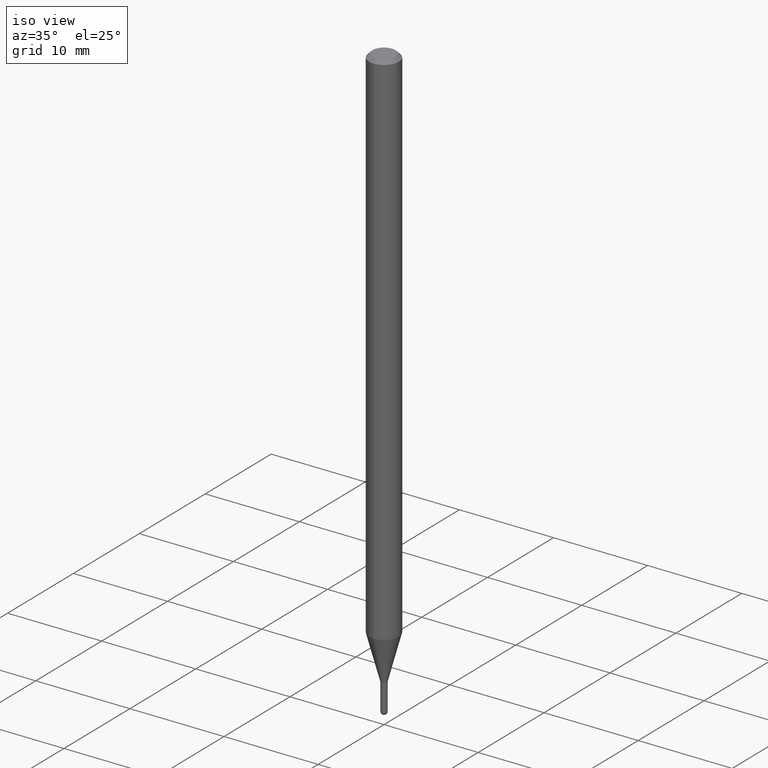
[diagram: clean part render]
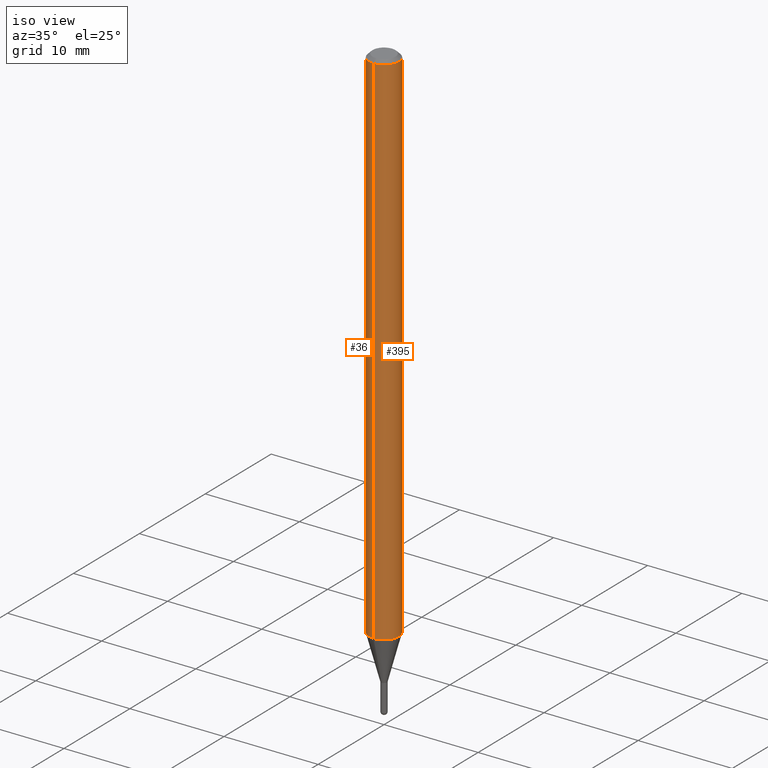
[diagram: same view with one multi-face feature highlighted, each face labeled with its STEP entity id]
A machine part, iso view. The highlighted faces form ONE feature: a constant-radius fillet chain: 2 tangent blend faces with common blend radius 1.5875 mm. The faces share edges in the B-rep.
Their STEP definitions:
[1] entity #36 (Cylinder):
#31 = CARTESIAN_POINT ( 'NONE',  ( 3.668088446611208352E-31, -5.237386354935034008E-17, -0.01500000000000000812 ) ) ;
#32 = EDGE_LOOP ( 'NONE', ( #501, #215, #427, #185 ) ) ;
#36 = ADVANCED_FACE ( 'NONE', ( #335 ), #300, .T. ) ;
#65 = EDGE_CURVE ( 'NONE', #504, #435, #362, .T. ) ;
#70 = VECTOR ( 'NONE', #319, 39.37007874015748143 ) ;
#86 = DIRECTION ( 'NONE',  ( -2.445392297740803594E-29, 3.491590903290020766E-15, 1.000000000000000000 ) ) ;
#105 = CARTESIAN_POINT ( 'NONE',  ( -4.364351673553912750E-16, -0.06250000000000005551, -0.01499999999999979128 ) ) ;
#116 = DIRECTION ( 'NONE',  ( -6.982962677686265922E-15, -1.000000000000000000, 3.483106191921935554E-15 ) ) ;
#168 = CARTESIAN_POINT ( 'NONE',  ( -4.364351673553382241E-16, -0.06250000000000764666, -2.188397459621561847 ) ) ;
#185 = ORIENTED_EDGE ( 'NONE', *, *, #312, .F. ) ;
#208 = CARTESIAN_POINT ( 'NONE',  ( 4.440892098501164559E-16, 0.06249999999999995143, -0.01500000000000022669 ) ) ;
#215 = ORIENTED_EDGE ( 'NONE', *, *, #65, .T. ) ;
#221 = CARTESIAN_POINT ( 'NONE',  ( 5.351490292154110661E-29, -7.640988662797635035E-15, -2.188397459621562291 ) ) ;
#230 = VERTEX_POINT ( 'NONE', #105 ) ;
#255 = VECTOR ( 'NONE', #86, 39.37007874015748143 ) ;
#297 = CIRCLE ( 'NONE', #429, 0.06250000000000000000 ) ;
#300 = CYLINDRICAL_SURFACE ( 'NONE', #409, 0.06250000000000000000 ) ;
#303 = EDGE_CURVE ( 'NONE', #504, #392, #428, .T. ) ;
#312 = EDGE_CURVE ( 'NONE', #392, #230, #297, .T. ) ;
#319 = DIRECTION ( 'NONE',  ( -2.445392297740803594E-29, 3.491590903290020766E-15, 1.000000000000000000 ) ) ;
#320 = CARTESIAN_POINT ( 'NONE',  ( -4.364351673553916201E-16, -0.06250000000000000000, 2.182244314556262486E-16 ) ) ;
#321 = LINE ( 'NONE', #320, #255 ) ;
#335 = FACE_OUTER_BOUND ( 'NONE', #32, .T. ) ;
#356 = EDGE_CURVE ( 'NONE', #435, #230, #321, .T. ) ;
#362 = CIRCLE ( 'NONE', #387, 0.06250000000000000000 ) ;
#377 = DIRECTION ( 'NONE',  ( -6.982962677686265922E-15, -1.000000000000000000, 3.491590903290019977E-15 ) ) ;
#378 = DIRECTION ( 'NONE',  ( -2.445392297740803875E-29, 3.491590903290020371E-15, 1.000000000000000000 ) ) ;
#384 = DIRECTION ( 'NONE',  ( -6.982962677686265922E-15, -1.000000000000000000, 4.370956789862821150E-15 ) ) ;
#387 = AXIS2_PLACEMENT_3D ( 'NONE', #221, #499, #384 ) ;
#392 = VERTEX_POINT ( 'NONE', #208 ) ;
#409 = AXIS2_PLACEMENT_3D ( 'NONE', #416, #378, #377 ) ;
#416 = CARTESIAN_POINT ( 'NONE',  ( 0.000000000000000000, 0.000000000000000000, 0.000000000000000000 ) ) ;
#426 = CARTESIAN_POINT ( 'NONE',  ( 4.440892098500625669E-16, 0.06250000000000000000, -2.182244314556262486E-16 ) ) ;
#427 = ORIENTED_EDGE ( 'NONE', *, *, #356, .T. ) ;
#428 = LINE ( 'NONE', #426, #70 ) ;
#429 = AXIS2_PLACEMENT_3D ( 'NONE', #31, #473, #116 ) ;
#435 = VERTEX_POINT ( 'NONE', #168 ) ;
#473 = DIRECTION ( 'NONE',  ( -2.445392297740803875E-29, 3.491590903290020371E-15, 1.000000000000000000 ) ) ;
#487 = CARTESIAN_POINT ( 'NONE',  ( 4.440892098501159629E-16, 0.06249999999999236028, -2.188397459621562735 ) ) ;
#499 = DIRECTION ( 'NONE',  ( -2.445392297740803875E-29, 3.491590903290020371E-15, 1.000000000000000000 ) ) ;
#501 = ORIENTED_EDGE ( 'NONE', *, *, #303, .F. ) ;
#504 = VERTEX_POINT ( 'NONE', #487 ) ;
[2] entity #395 (Cylinder):
#7 = FACE_OUTER_BOUND ( 'NONE', #48, .T. ) ;
#12 = AXIS2_PLACEMENT_3D ( 'NONE', #385, #101, #259 ) ;
#16 = EDGE_CURVE ( 'NONE', #435, #504, #341, .T. ) ;
#23 = CARTESIAN_POINT ( 'NONE',  ( 3.668088446611208352E-31, -5.237386354935034008E-17, -0.01500000000000000812 ) ) ;
#25 = AXIS2_PLACEMENT_3D ( 'NONE', #23, #93, #224 ) ;
#48 = EDGE_LOOP ( 'NONE', ( #442, #507, #250, #154 ) ) ;
#54 = EDGE_CURVE ( 'NONE', #230, #392, #475, .T. ) ;
#70 = VECTOR ( 'NONE', #319, 39.37007874015748143 ) ;
#81 = DIRECTION ( 'NONE',  ( -6.982962677686265922E-15, -1.000000000000000000, 3.491590903290019977E-15 ) ) ;
#86 = DIRECTION ( 'NONE',  ( -2.445392297740803594E-29, 3.491590903290020766E-15, 1.000000000000000000 ) ) ;
#93 = DIRECTION ( 'NONE',  ( -2.445392297740803875E-29, 3.491590903290020371E-15, 1.000000000000000000 ) ) ;
#101 = DIRECTION ( 'NONE',  ( -2.445392297740803875E-29, 3.491590903290020371E-15, 1.000000000000000000 ) ) ;
#105 = CARTESIAN_POINT ( 'NONE',  ( -4.364351673553912750E-16, -0.06250000000000005551, -0.01499999999999979128 ) ) ;
#126 = AXIS2_PLACEMENT_3D ( 'NONE', #361, #163, #81 ) ;
#154 = ORIENTED_EDGE ( 'NONE', *, *, #356, .F. ) ;
#163 = DIRECTION ( 'NONE',  ( -2.445392297740803875E-29, 3.491590903290020371E-15, 1.000000000000000000 ) ) ;
#168 = CARTESIAN_POINT ( 'NONE',  ( -4.364351673553382241E-16, -0.06250000000000764666, -2.188397459621561847 ) ) ;
#208 = CARTESIAN_POINT ( 'NONE',  ( 4.440892098501164559E-16, 0.06249999999999995143, -0.01500000000000022669 ) ) ;
#224 = DIRECTION ( 'NONE',  ( -6.982962677686265922E-15, -1.000000000000000000, 3.483106191921935554E-15 ) ) ;
#230 = VERTEX_POINT ( 'NONE', #105 ) ;
#241 = CYLINDRICAL_SURFACE ( 'NONE', #126, 0.06250000000000000000 ) ;
#250 = ORIENTED_EDGE ( 'NONE', *, *, #54, .F. ) ;
#255 = VECTOR ( 'NONE', #86, 39.37007874015748143 ) ;
#259 = DIRECTION ( 'NONE',  ( -6.982962677686265922E-15, -1.000000000000000000, 4.370956789862821150E-15 ) ) ;
#303 = EDGE_CURVE ( 'NONE', #504, #392, #428, .T. ) ;
#319 = DIRECTION ( 'NONE',  ( -2.445392297740803594E-29, 3.491590903290020766E-15, 1.000000000000000000 ) ) ;
#320 = CARTESIAN_POINT ( 'NONE',  ( -4.364351673553916201E-16, -0.06250000000000000000, 2.182244314556262486E-16 ) ) ;
#321 = LINE ( 'NONE', #320, #255 ) ;
#341 = CIRCLE ( 'NONE', #12, 0.06250000000000000000 ) ;
#356 = EDGE_CURVE ( 'NONE', #435, #230, #321, .T. ) ;
#361 = CARTESIAN_POINT ( 'NONE',  ( 0.000000000000000000, 0.000000000000000000, 0.000000000000000000 ) ) ;
#385 = CARTESIAN_POINT ( 'NONE',  ( 5.351490292154110661E-29, -7.640988662797635035E-15, -2.188397459621562291 ) ) ;
#392 = VERTEX_POINT ( 'NONE', #208 ) ;
#395 = ADVANCED_FACE ( 'NONE', ( #7 ), #241, .T. ) ;
#426 = CARTESIAN_POINT ( 'NONE',  ( 4.440892098500625669E-16, 0.06250000000000000000, -2.182244314556262486E-16 ) ) ;
#428 = LINE ( 'NONE', #426, #70 ) ;
#435 = VERTEX_POINT ( 'NONE', #168 ) ;
#442 = ORIENTED_EDGE ( 'NONE', *, *, #16, .T. ) ;
#475 = CIRCLE ( 'NONE', #25, 0.06250000000000000000 ) ;
#487 = CARTESIAN_POINT ( 'NONE',  ( 4.440892098501159629E-16, 0.06249999999999236028, -2.188397459621562735 ) ) ;
#504 = VERTEX_POINT ( 'NONE', #487 ) ;
#507 = ORIENTED_EDGE ( 'NONE', *, *, #303, .T. ) ;